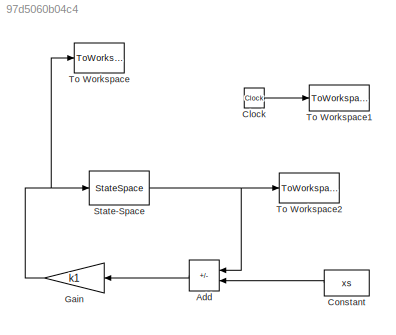
MODEL slx_97d5060b04c4
KIND model
CONFIG AbsTol = auto
CONFIG EnableMultiTasking = off
CONFIG FixedStep = auto
CONFIG MaxStep = auto
CONFIG MinStep = auto
CONFIG RelTol = 1e-3
CONFIG SampleTimeConstraint = Unconstrained
CONFIG SolverName = VariableStepAuto
CONFIG StartTime = 0.0
CONFIG StopTime = 10.0
BLOCK [Sum] Add
  IconShape = rectangular
  Inputs = -+
  NameLocation = top
BLOCK [Clock] Clock
BLOCK [Constant] Constant
  NameLocation = top
  Value = xs
BLOCK [Gain] Gain
  Gain = k1
  Multiplication = Matrix(K*u)
  NameLocation = top
BLOCK [StateSpace] State-Space
  A = A
  B = B
  C = eye(4,4)
  D = [0;0;0;0]
  InitialCondition = x0
BLOCK [ToWorkspace] To Workspace
  FixptAsFi = on
  MaxDataPoints = inf
  SampleTime = -1
  Save2DSignal = 2-D array (concatenate along first dimension)
  VariableName = vf_lin
BLOCK [ToWorkspace] To Workspace1
  FixptAsFi = on
  MaxDataPoints = inf
  SampleTime = -1
  Save2DSignal = 2-D array (concatenate along first dimension)
  VariableName = tf_lin
BLOCK [ToWorkspace] To Workspace2
  FixptAsFi = on
  MaxDataPoints = inf
  SampleTime = -1
  Save2DSignal = 2-D array (concatenate along first dimension)
  VariableName = xf_lin
LINE Add:1 -> Gain:1
LINE Clock:1 -> To Workspace1:1
LINE Constant:1 -> Add:2
NET Gain:1 -> State-Space:1, To Workspace:1
NET State-Space:1 -> Add:1, To Workspace2:1
note: NET lines group one-source signal fan-out (src -> all destinations, sorted); 1:1 wires keep LINE
